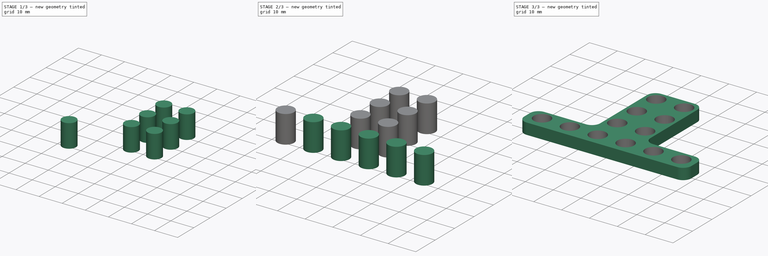
[diagram: build sequence overview — one tinted view per stage of 3, left to right]
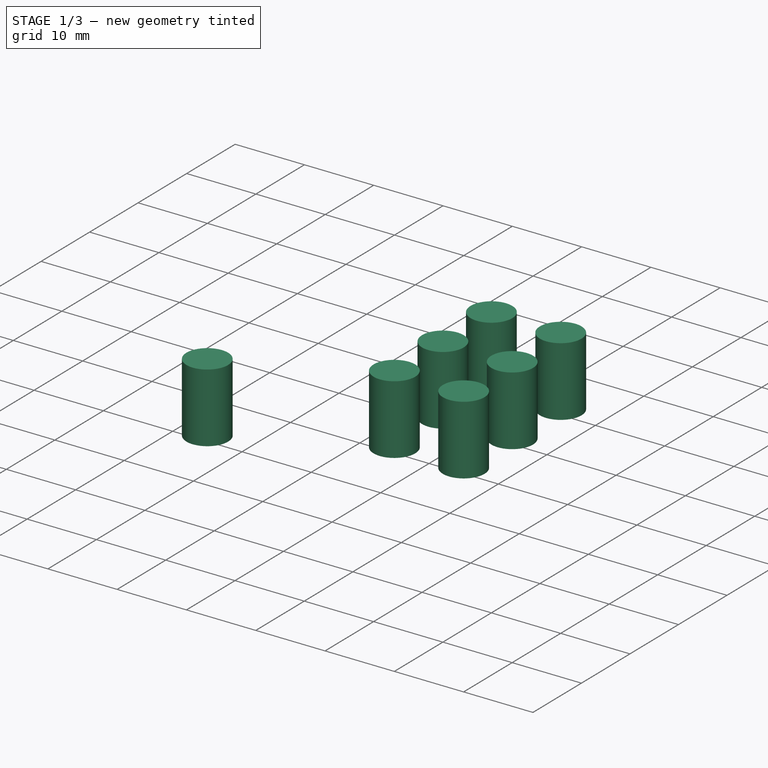
[diagram: stage 1 of 3 — iso view after this stage's code; geometry added in this stage tinted green]
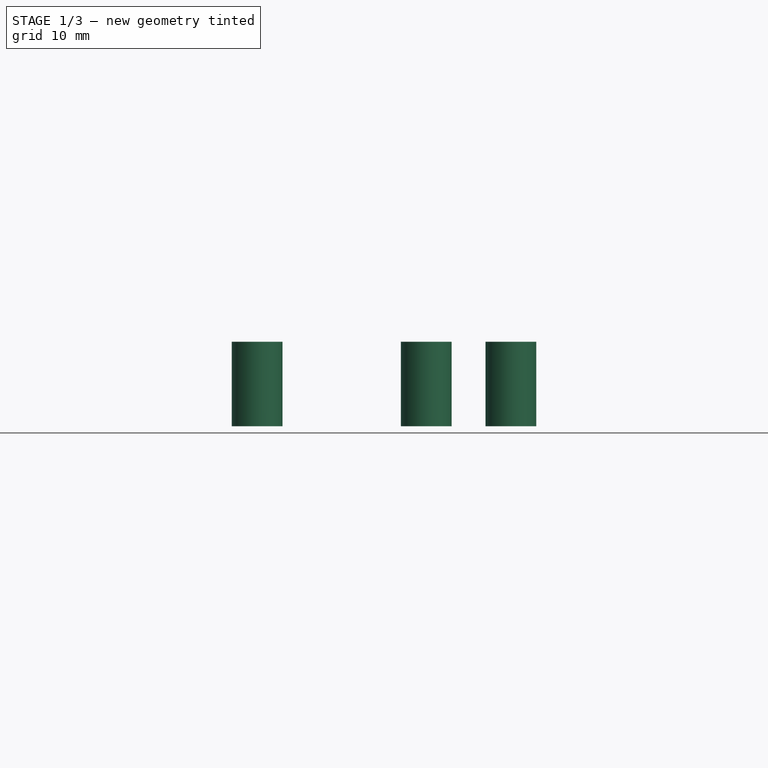
[diagram: stage 1 of 3 — front view after this stage's code; geometry added in this stage tinted green]
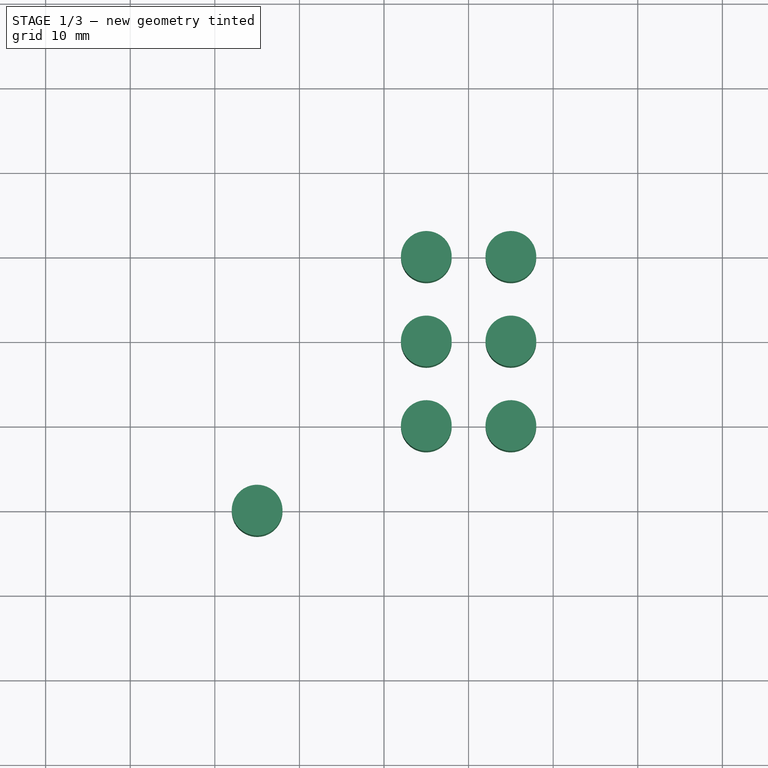
[diagram: stage 1 of 3 — top view after this stage's code; geometry added in this stage tinted green]
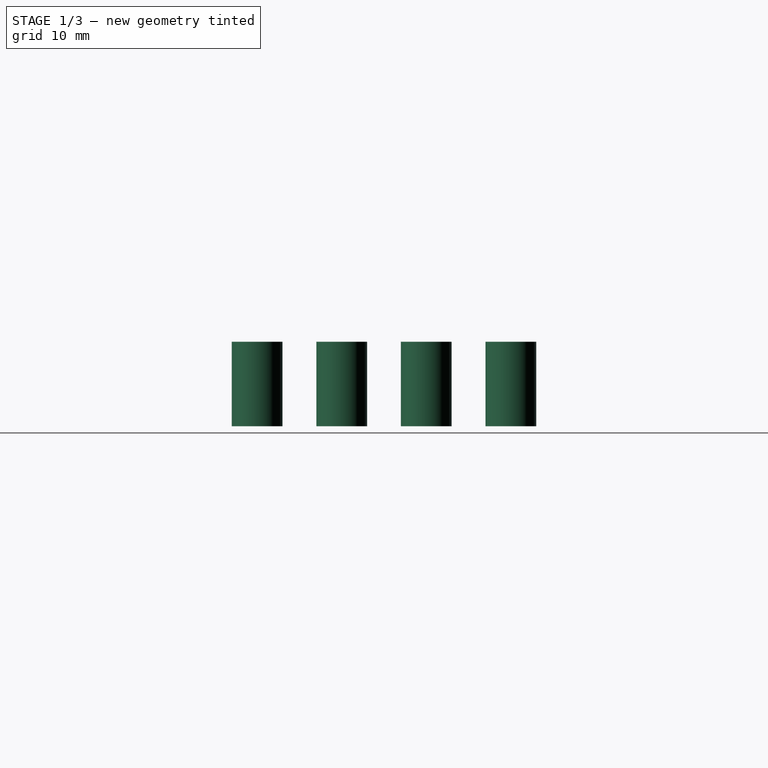
[diagram: stage 1 of 3 — right view after this stage's code; geometry added in this stage tinted green]
FCSTD DOCUMENT  (FreeCAD 0.14R3702 (Git))
Label: t_union_floor
License: CC-BY 3.0
LicenseURL: http://creativecommons.org/licenses/by/3.0/
objects: Part::Cylinder×2, Part::FeaturePython×2, Sketcher::SketchObject×1, PartDesign::Pad×1, Part::MultiFuse×1, Part::Cut×1, Part::Fillet×1
note: 10 computed .brp shape members not serialized (recipe doc carries the construction recipe); baked Part::Feature solids carry a one-line shape summary decoded from their .brp

FEATURE [Part::Cylinder] Cylinder
  Angle = 360
  Height = 10
  Placement = pos=(-25,0,1) rot=(0,0,1;0rad)
  Radius = 3
FEATURE [Part::Cylinder] Cylinder001
  Angle = 360
  Height = 10
  Placement = pos=(-5,10,1) rot=(0,0,1;0rad)
  Radius = 3
FEATURE [Part::FeaturePython] Array001  label="h_hole_groove_bolt_vert"  # Draft array (typed FeaturePython)
  Angle = 360
  ArrayType = 0
  Axis = (0,0,1)
  Base = -> Cylinder001
  Center = (0,0,0)
  IntervalX = (10,0,0)
  IntervalY = (0,10,0)
  IntervalZ = (0,0,1)
  NumberPolar = 1
  NumberX = 2
  NumberY = 3
  NumberZ = 1
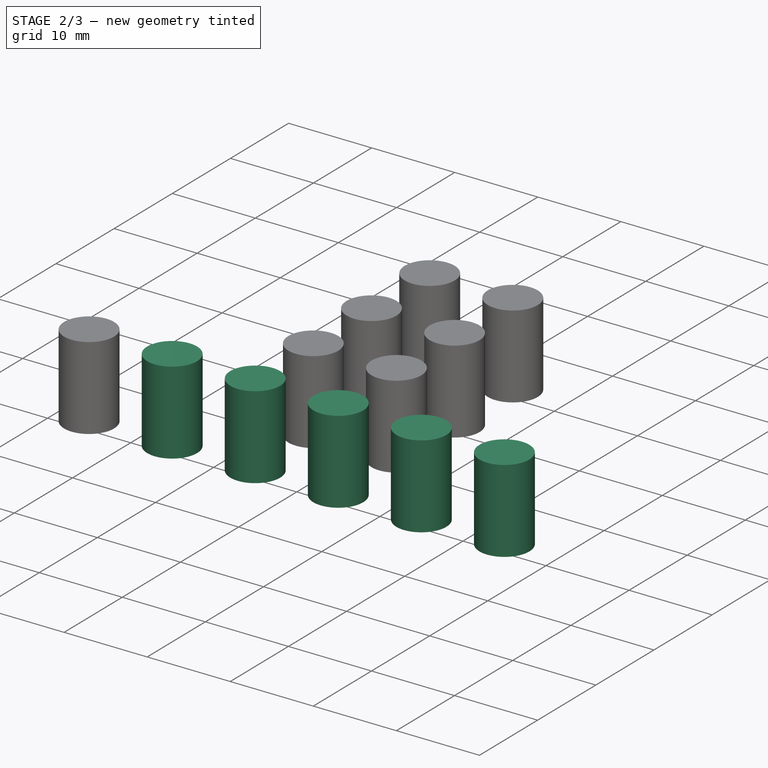
[diagram: stage 2 of 3 — iso view after this stage's code; geometry added in this stage tinted green]
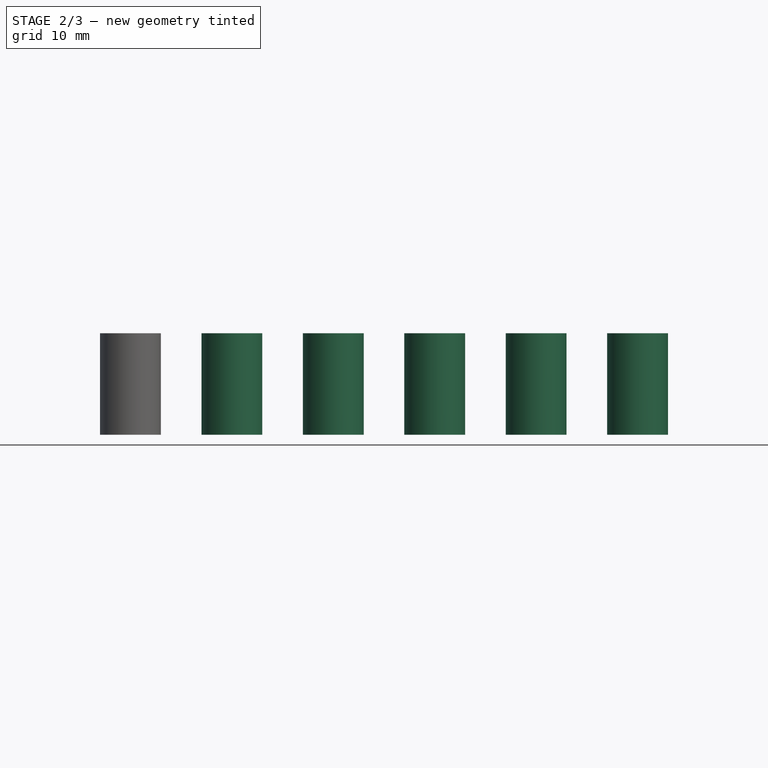
[diagram: stage 2 of 3 — front view after this stage's code; geometry added in this stage tinted green]
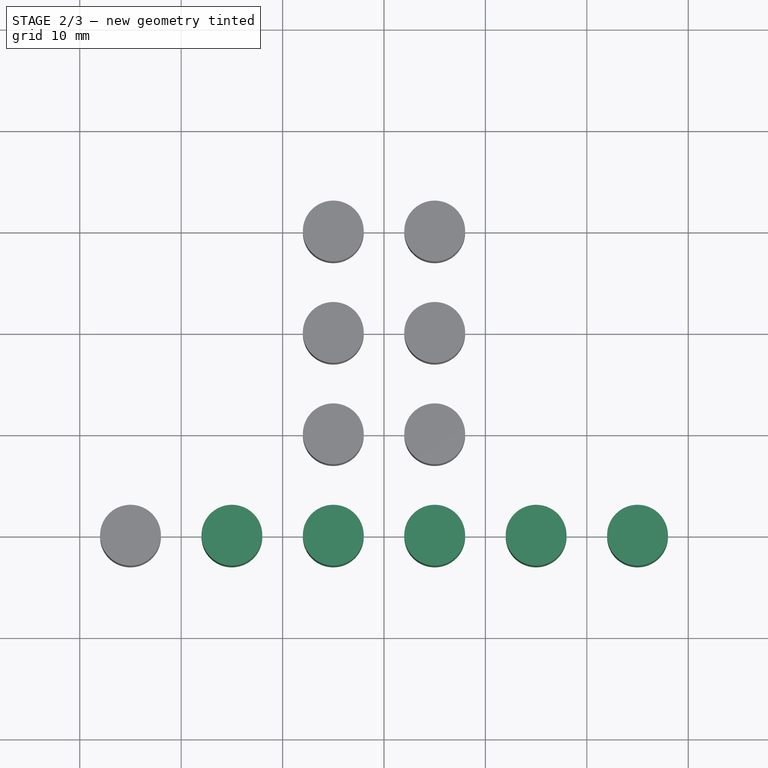
[diagram: stage 2 of 3 — top view after this stage's code; geometry added in this stage tinted green]
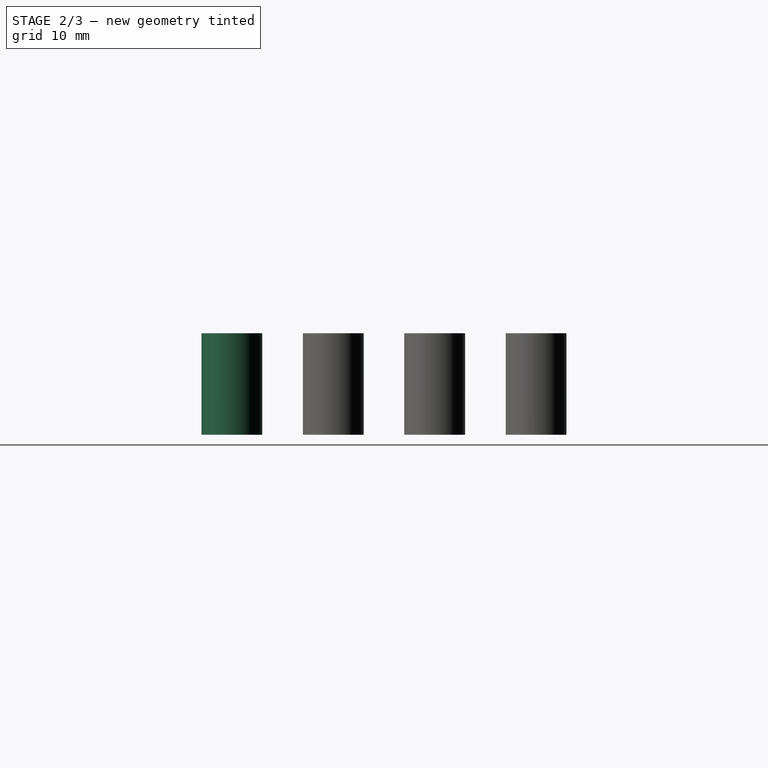
[diagram: stage 2 of 3 — right view after this stage's code; geometry added in this stage tinted green]
FEATURE [Part::FeaturePython] Array  label="h_hole_groove_bolt_horiz"  # Draft array (typed FeaturePython)
  Angle = 360
  ArrayType = 0
  Axis = (0,0,1)
  Base = -> Cylinder
  Center = (0,0,0)
  IntervalX = (10,0,0)
  IntervalY = (0,1,0)
  IntervalZ = (0,0,1)
  NumberPolar = 1
  NumberX = 6
  NumberY = 1
  NumberZ = 1
FEATURE [Part::MultiFuse] Fusion
  Shapes = -> [Array,Array001]
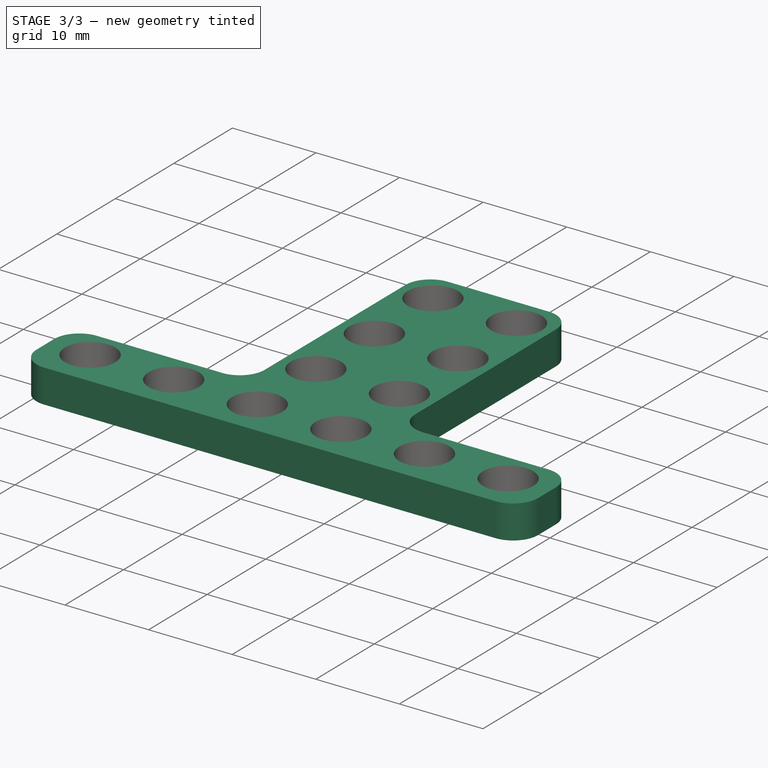
[diagram: stage 3 of 3 — iso view after this stage's code; geometry added in this stage tinted green]
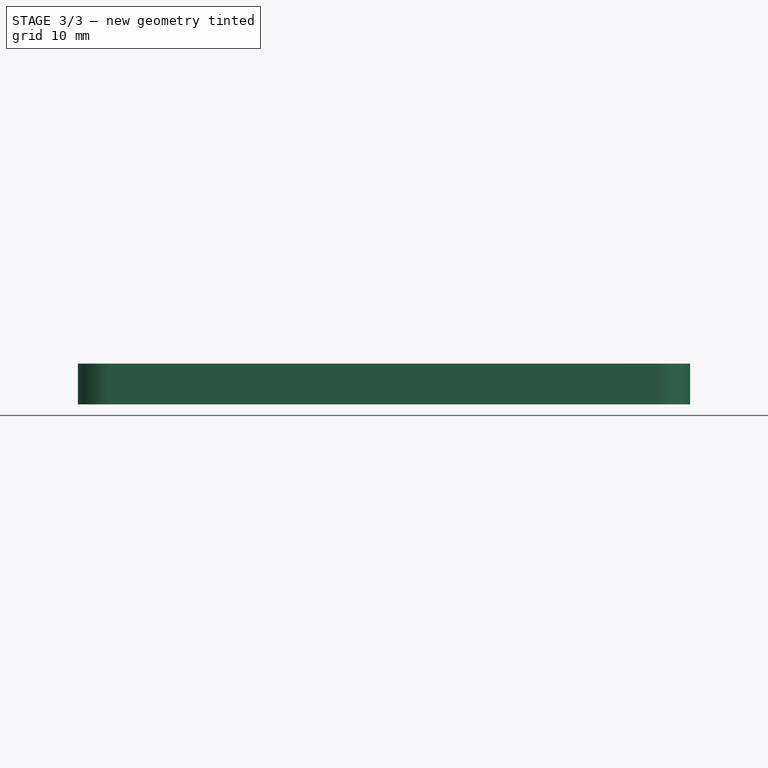
[diagram: stage 3 of 3 — front view after this stage's code; geometry added in this stage tinted green]
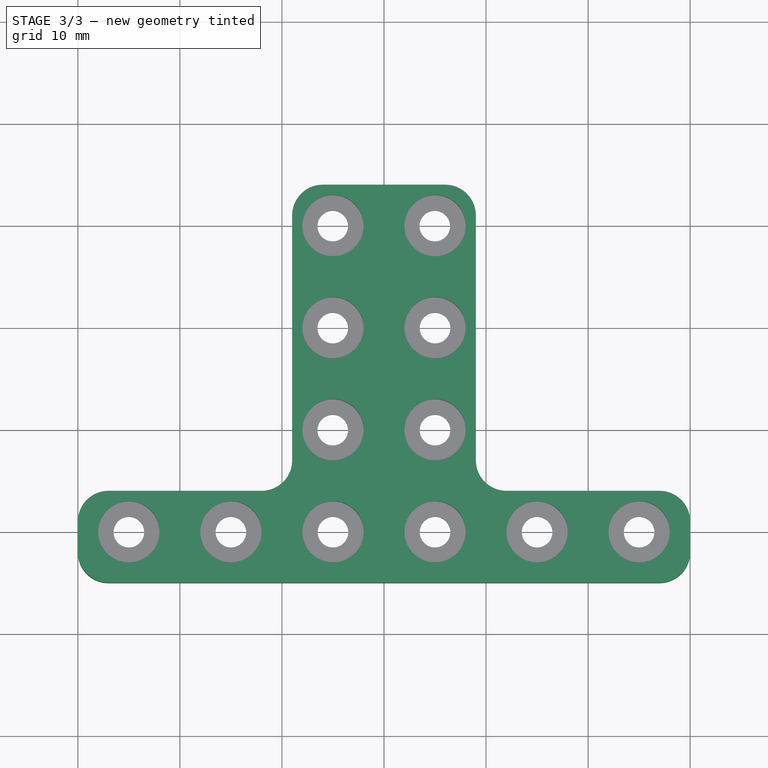
[diagram: stage 3 of 3 — top view after this stage's code; geometry added in this stage tinted green]
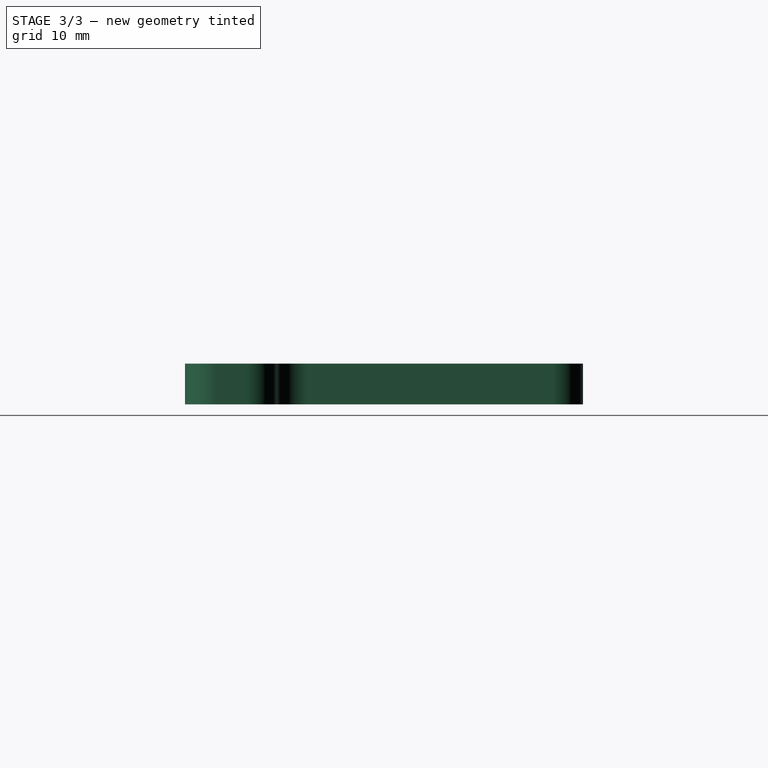
[diagram: stage 3 of 3 — right view after this stage's code; geometry added in this stage tinted green]
FEATURE [Sketcher::SketchObject] Sketch
  sketch-geometry (22):
    g0: LineSegment StartX=-30 StartY=4 StartZ=0 EndX=-30 EndY=-5 EndZ=0
    g1: LineSegment StartX=-30 StartY=-5 StartZ=0 EndX=30 EndY=-5 EndZ=0
    g2: LineSegment StartX=30 StartY=-5 StartZ=0 EndX=30 EndY=4 EndZ=0
    g3: LineSegment StartX=30 StartY=4 StartZ=0 EndX=9 EndY=4 EndZ=0
    g4: LineSegment StartX=9 StartY=4 StartZ=0 EndX=9 EndY=34 EndZ=0
    g5: LineSegment StartX=9 StartY=34 StartZ=0 EndX=-9 EndY=34 EndZ=0
    g6: LineSegment StartX=-9 StartY=34 StartZ=0 EndX=-9 EndY=4 EndZ=0
    g7: LineSegment StartX=-9 StartY=4 StartZ=0 EndX=-30 EndY=4 EndZ=0
    g8: Circle CenterX=-25 CenterY=0 CenterZ=0 NormalX=0 NormalY=0 NormalZ=1 Radius=1.5
    g9: Circle CenterX=-5 CenterY=0 CenterZ=0 NormalX=0 NormalY=0 NormalZ=1 Radius=1.5
    g10: Circle CenterX=-15 CenterY=0 CenterZ=0 NormalX=0 NormalY=0 NormalZ=1 Radius=1.5
    g11: Circle CenterX=5 CenterY=0 CenterZ=0 NormalX=0 NormalY=0 NormalZ=1 Radius=1.5
    g12: Circle CenterX=15 CenterY=0 CenterZ=0 NormalX=0 NormalY=0 NormalZ=1 Radius=1.5
    g13: Circle CenterX=25 CenterY=0 CenterZ=0 NormalX=0 NormalY=0 NormalZ=1 Radius=1.5
    g14: Circle CenterX=-5.02295 CenterY=10 CenterZ=0 NormalX=0 NormalY=0 NormalZ=1 Radius=1.5
    g15: Circle CenterX=-5.02295 CenterY=20 CenterZ=0 NormalX=0 NormalY=0 NormalZ=1 Radius=1.5
    g16: Circle CenterX=-5.02295 CenterY=30 CenterZ=0 NormalX=0 NormalY=0 NormalZ=1 Radius=1.5
    g17: LineSegment [constr] StartX=-5.02295 StartY=-0.113176 StartZ=0 EndX=-5.02295 EndY=37.3868 EndZ=0
    g18: Circle CenterX=5 CenterY=10 CenterZ=0 NormalX=0 NormalY=0 NormalZ=1 Radius=1.5
    g19: Circle CenterX=5 CenterY=20 CenterZ=0 NormalX=0 NormalY=0 NormalZ=1 Radius=1.5
    g20: Circle CenterX=15.1936 CenterY=33.5969 CenterZ=0 NormalX=0 NormalY=0 NormalZ=1 Radius=0
    g21: Circle CenterX=4.97705 CenterY=30 CenterZ=0 NormalX=0 NormalY=0 NormalZ=1 Radius=1.5
  constraints (57):
    c: Coincident(g0,g1)
    c: Horizontal(g1)
    c: Coincident(g1,g2)
    c: Vertical(g2)
    c: Coincident(g2,g3)
    c: Horizontal(g3)
    c: Coincident(g3,g4)
    c: Coincident(g4,g5)
    c: Coincident(g5,g6)
    c: Coincident(g6,g7)
    c: Coincident(g7,g0)
    c: Horizontal(g7)
    c: Vertical(g0)
    c: Symmetric(g0,g2,g-2)
    c: Symmetric(g3,g6,g-2)
    c: Vertical(g6)
    c: Vertical(g4)
    c: Horizontal(g5)
    c: DistanceY(g0) = -9
    c: DistanceY(g-1,g0) = -5
    c: DistanceX(g5) = -18
    c: PointOnObject(g9,g-1)
    c: PointOnObject(g11,g-1)
    c: PointOnObject(g12,g-1)
    c: PointOnObject(g13,g-1)
    c: PointOnObject(g10,g-1)
    c: PointOnObject(g8,g-1)
    c: DistanceX(g8,g10) = 10
    c: DistanceX(g-1,g9) = -5
    c: DistanceX(g9,g10) = -10
    c: DistanceX(g-1,g11) = 5
    c: DistanceX(g11,g12) = 10
    c: DistanceX(g12,g13) = 10
    c: DistanceX(g1) = 60
    c: DistanceY(g-1,g14) = 10
    c: Vertical(g17)
    c: PointOnObject(g14,g17)
    c: PointOnObject(g16,g17)
    c: PointOnObject(g15,g17)
    c: DistanceY(g14,g15) = 10
    c: DistanceY(g15,g16) = 10
    c: DistanceY(g11,g18) = 10
    c: DistanceY(g18,g19) = 10
    c: Equal(g15,g19)
    c: Equal(g19,g14)
    c: Equal(g14,g18)
    c: Equal(g18,g11)
    c: Equal(g11,g12)
    c: Equal(g12,g13)
    c: Equal(g13,g9)
    c: Equal(g9,g10)
    c: Equal(g10,g8)
    c: Radius(g16) = 1.5
    c: Equal(g16,g21)
    c: DistanceX(g16,g21) = 10
    c: DistanceY(g21,g19) = -10
    c: DistanceY(g6) = -30
FEATURE [PartDesign::Pad] Pad
  Length = 4
  Length2 = 100
  Sketch = -> Sketch
  Type = 0
FEATURE [Part::Cut] Cut
  Base = -> Pad
  Tool = -> Fusion
FEATURE [Part::Fillet] Fillet
  Base = -> Cut
  Edges = 8 edges r=3: [Edge1,Edge2,Edge5,Edge8,Edge45,Edge46,Edge47,Edge48]
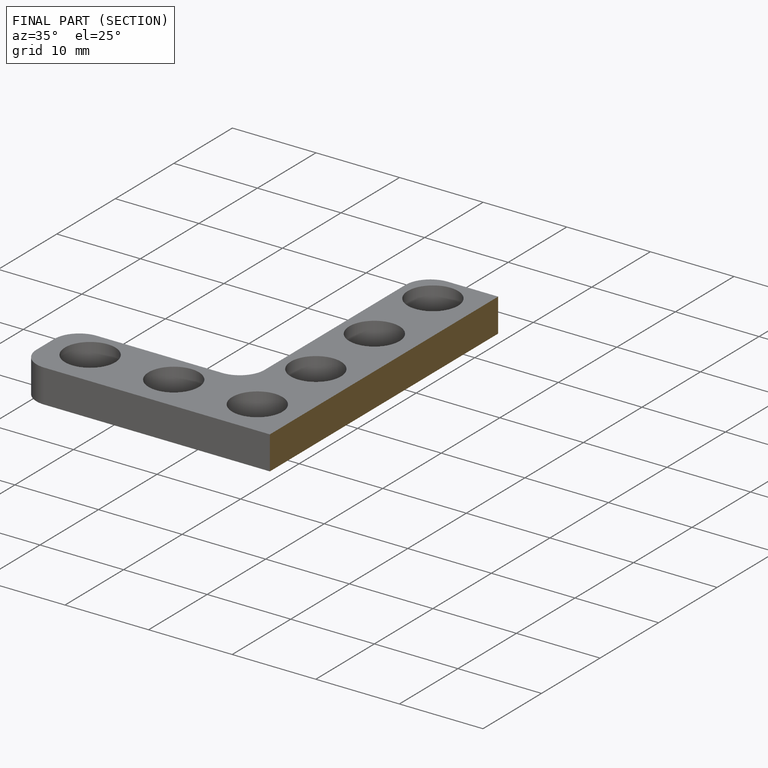
[diagram: finished part — half-section view (interior)]
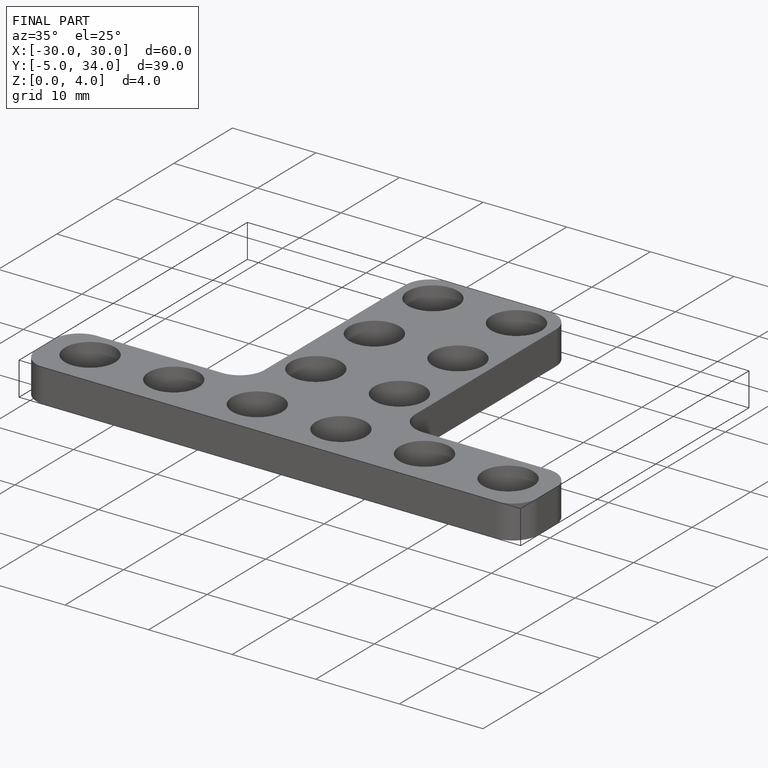
[diagram: finished part — iso view with bounding-box wireframe]
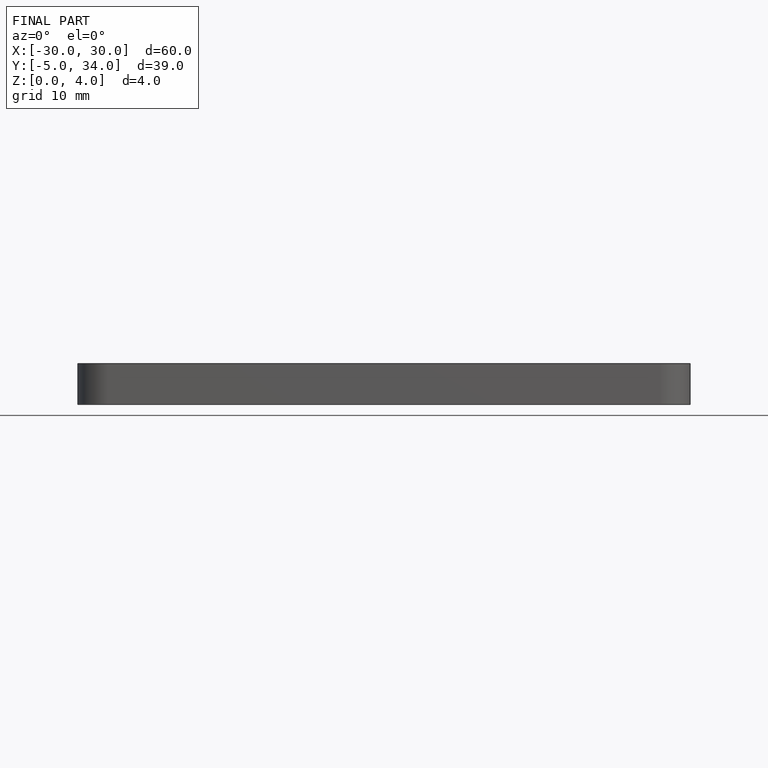
[diagram: finished part — front view with bounding-box wireframe]
